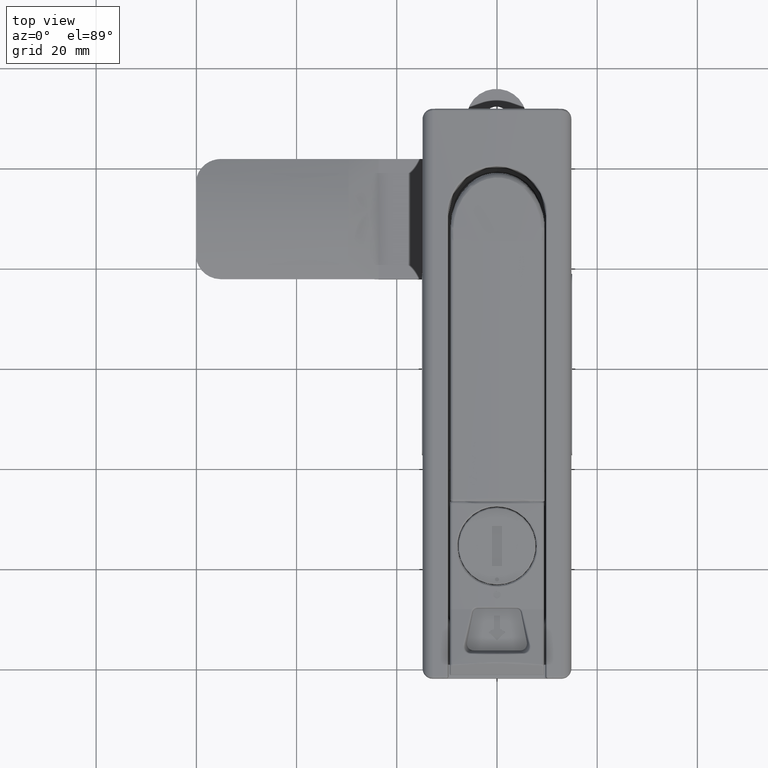
[diagram: clean part render]
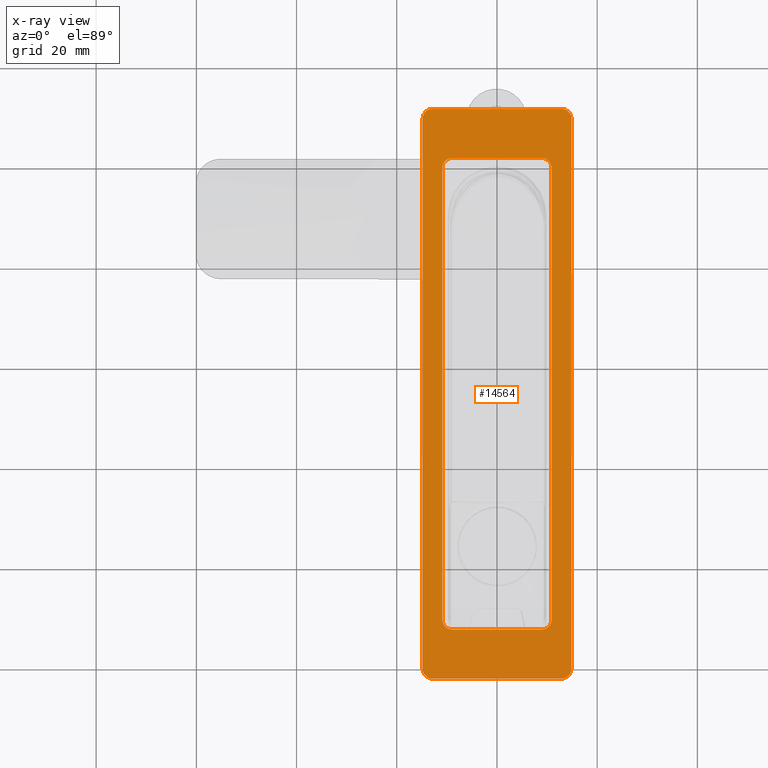
[diagram: x-ray — body ghosted, one internal face saturated and labeled with its STEP entity id]
A machine part, top view, then the same camera in x-ray: the body is ghosted and one INTERNAL B-rep face — a face not visible from any outside direction — is saturated and labeled: STEP entity #14564.
In plain terms, the highlighted planar face has unit normal (-0, 0, 1).
Its self-contained STEP definition (entity closure, byte-faithful):
#467=FACE_BOUND('',#4172,.T.);
#1093=LINE('',#43708,#2013);
#1097=LINE('',#43720,#2017);
#1101=LINE('',#43732,#2021);
#1105=LINE('',#43744,#2025);
#1109=LINE('',#43756,#2029);
#1113=LINE('',#43768,#2033);
#1117=LINE('',#43780,#2037);
#1121=LINE('',#43792,#2041);
#2013=VECTOR('',#18578,17.7999999999999);
#2017=VECTOR('',#18590,90.1000000000001);
#2021=VECTOR('',#18602,17.7999999999999);
#2025=VECTOR('',#18614,90.1000000000001);
#2029=VECTOR('',#18626,109.7);
#2033=VECTOR('',#18638,25.6999999999998);
#2037=VECTOR('',#18650,109.7);
#2041=VECTOR('',#18662,25.6999999999998);
#2650=PLANE('',#15839);
#3252=FACE_OUTER_BOUND('',#4171,.T.);
#4171=EDGE_LOOP('',(#11685,#11686,#11687,#11688,#11689,#11690,#11691,#11692));
#4172=EDGE_LOOP('',(#11693,#11694,#11695,#11696,#11697,#11698,#11699,#11700));
#5441=CIRCLE('',#15810,2.);
#5443=CIRCLE('',#15814,1.99999999999999);
#5445=CIRCLE('',#15818,1.99999999999999);
#5447=CIRCLE('',#15822,1.99999999999999);
#5449=CIRCLE('',#15826,1.99999999999999);
#5451=CIRCLE('',#15830,1.99999999999999);
#5453=CIRCLE('',#15834,2.);
#5455=CIRCLE('',#15838,2.00000000000001);
#6496=VERTEX_POINT('',#43705);
#6497=VERTEX_POINT('',#43707);
#6499=VERTEX_POINT('',#43713);
#6501=VERTEX_POINT('',#43719);
#6503=VERTEX_POINT('',#43725);
#6505=VERTEX_POINT('',#43731);
#6507=VERTEX_POINT('',#43737);
#6509=VERTEX_POINT('',#43743);
#6512=VERTEX_POINT('',#43753);
#6513=VERTEX_POINT('',#43755);
#6515=VERTEX_POINT('',#43761);
#6517=VERTEX_POINT('',#43767);
#6519=VERTEX_POINT('',#43773);
#6521=VERTEX_POINT('',#43779);
#6523=VERTEX_POINT('',#43785);
#6525=VERTEX_POINT('',#43791);
#8296=EDGE_CURVE('',#6497,#6496,#1093,.T.);
#8299=EDGE_CURVE('',#6499,#6497,#5441,.T.);
#8302=EDGE_CURVE('',#6501,#6499,#1097,.T.);
#8305=EDGE_CURVE('',#6503,#6501,#5443,.T.);
#8308=EDGE_CURVE('',#6505,#6503,#1101,.T.);
#8311=EDGE_CURVE('',#6507,#6505,#5445,.T.);
#8314=EDGE_CURVE('',#6509,#6507,#1105,.T.);
#8317=EDGE_CURVE('',#6496,#6509,#5447,.T.);
#8320=EDGE_CURVE('',#6513,#6512,#1109,.T.);
#8323=EDGE_CURVE('',#6515,#6513,#5449,.T.);
#8326=EDGE_CURVE('',#6517,#6515,#1113,.T.);
#8329=EDGE_CURVE('',#6519,#6517,#5451,.T.);
#8332=EDGE_CURVE('',#6521,#6519,#1117,.T.);
#8335=EDGE_CURVE('',#6523,#6521,#5453,.T.);
#8338=EDGE_CURVE('',#6525,#6523,#1121,.T.);
#8341=EDGE_CURVE('',#6512,#6525,#5455,.T.);
#11685=ORIENTED_EDGE('',*,*,#8341,.T.);
#11686=ORIENTED_EDGE('',*,*,#8338,.T.);
#11687=ORIENTED_EDGE('',*,*,#8335,.T.);
#11688=ORIENTED_EDGE('',*,*,#8332,.T.);
#11689=ORIENTED_EDGE('',*,*,#8329,.T.);
#11690=ORIENTED_EDGE('',*,*,#8326,.T.);
#11691=ORIENTED_EDGE('',*,*,#8323,.T.);
#11692=ORIENTED_EDGE('',*,*,#8320,.T.);
#11693=ORIENTED_EDGE('',*,*,#8317,.T.);
#11694=ORIENTED_EDGE('',*,*,#8314,.T.);
#11695=ORIENTED_EDGE('',*,*,#8311,.T.);
#11696=ORIENTED_EDGE('',*,*,#8308,.T.);
#11697=ORIENTED_EDGE('',*,*,#8305,.T.);
#11698=ORIENTED_EDGE('',*,*,#8302,.T.);
#11699=ORIENTED_EDGE('',*,*,#8299,.T.);
#11700=ORIENTED_EDGE('',*,*,#8296,.T.);
#14564=ADVANCED_FACE('',(#3252,#467),#2650,.T.);
#15810=AXIS2_PLACEMENT_3D('',#43714,#18584,#18585);
#15814=AXIS2_PLACEMENT_3D('',#43726,#18596,#18597);
#15818=AXIS2_PLACEMENT_3D('',#43738,#18608,#18609);
#15822=AXIS2_PLACEMENT_3D('',#43748,#18620,#18621);
#15826=AXIS2_PLACEMENT_3D('',#43762,#18632,#18633);
#15830=AXIS2_PLACEMENT_3D('',#43774,#18644,#18645);
#15834=AXIS2_PLACEMENT_3D('',#43786,#18656,#18657);
#15838=AXIS2_PLACEMENT_3D('',#43796,#18668,#18669);
#15839=AXIS2_PLACEMENT_3D('',#43797,#18670,#18671);
#18578=DIRECTION('',(0.,1.,0.));
#18584=DIRECTION('center_axis',(0.,0.,-1.));
#18585=DIRECTION('ref_axis',(-1.,0.,0.));
#18590=DIRECTION('',(-1.,0.,0.));
#18596=DIRECTION('center_axis',(0.,0.,-1.));
#18597=DIRECTION('ref_axis',(0.,-1.,0.));
#18602=DIRECTION('',(0.,-1.,0.));
#18608=DIRECTION('center_axis',(0.,0.,-1.));
#18609=DIRECTION('ref_axis',(1.,0.,0.));
#18614=DIRECTION('',(1.,0.,0.));
#18620=DIRECTION('center_axis',(0.,0.,-1.));
#18621=DIRECTION('ref_axis',(0.,1.,0.));
#18626=DIRECTION('',(-1.,1.61928608878783E-16,9.97962101416374E-50));
#18632=DIRECTION('center_axis',(0.,5.47382212626882E-48,1.));
#18633=DIRECTION('ref_axis',(1.,0.,0.));
#18638=DIRECTION('',(0.,1.,0.));
#18644=DIRECTION('center_axis',(-1.67587468650927E-64,-2.73691106313442E-48,
1.));
#18645=DIRECTION('ref_axis',(0.,-1.,-2.73691106313442E-48));
#18650=DIRECTION('',(1.,0.,-4.98981050708187E-50));
#18656=DIRECTION('center_axis',(0.,0.,1.));
#18657=DIRECTION('ref_axis',(-1.,0.,0.));
#18662=DIRECTION('',(-3.45594715836627E-16,-1.,0.));
#18668=DIRECTION('center_axis',(-1.67587468650927E-64,0.,1.));
#18669=DIRECTION('ref_axis',(0.,1.,0.));
#18670=DIRECTION('center_axis',(-1.67587468650927E-64,0.,1.));
#18671=DIRECTION('ref_axis',(-1.,0.,0.));
#43705=CARTESIAN_POINT('',(67.3999999999999,-91.1000000000001,-2.34999999999999));
#43707=CARTESIAN_POINT('',(67.3999999999999,-108.9,-2.34999999999999));
#43708=CARTESIAN_POINT('',(67.3999999999999,-91.1000000000001,-2.34999999999999));
#43713=CARTESIAN_POINT('',(69.3999999999999,-110.9,-2.34999999999999));
#43714=CARTESIAN_POINT('Origin',(69.3999999999999,-108.9,-2.34999999999999));
#43719=CARTESIAN_POINT('',(159.5,-110.9,-2.34999999999999));
#43720=CARTESIAN_POINT('',(69.3999999999999,-110.9,-2.34999999999999));
#43725=CARTESIAN_POINT('',(161.5,-108.9,-2.34999999999999));
#43726=CARTESIAN_POINT('Origin',(159.5,-108.9,-2.34999999999999));
#43731=CARTESIAN_POINT('',(161.5,-91.1000000000001,-2.34999999999999));
#43732=CARTESIAN_POINT('',(161.5,-108.9,-2.34999999999999));
#43737=CARTESIAN_POINT('',(159.5,-89.1000000000001,-2.34999999999999));
#43738=CARTESIAN_POINT('Origin',(159.5,-91.1000000000001,-2.34999999999999));
#43743=CARTESIAN_POINT('',(69.3999999999999,-89.1000000000001,-2.34999999999999));
#43744=CARTESIAN_POINT('',(159.5,-89.1000000000001,-2.34999999999999));
#43748=CARTESIAN_POINT('Origin',(69.3999999999999,-91.1000000000001,-2.34999999999999));
#43753=CARTESIAN_POINT('',(59.5999999999999,-85.1500000000002,-2.34999999999999));
#43755=CARTESIAN_POINT('',(169.3,-85.1500000000002,-2.34999999999999));
#43756=CARTESIAN_POINT('',(169.3,-85.1500000000002,-2.34999999999999));
#43761=CARTESIAN_POINT('',(171.3,-87.1500000000002,-2.34999999999999));
#43762=CARTESIAN_POINT('Origin',(169.3,-87.1500000000002,-2.34999999999999));
#43767=CARTESIAN_POINT('',(171.3,-112.85,-2.34999999999999));
#43768=CARTESIAN_POINT('',(171.3,-112.85,-2.34999999999999));
#43773=CARTESIAN_POINT('',(169.3,-114.85,-2.34999999999999));
#43774=CARTESIAN_POINT('Origin',(169.3,-112.85,-2.34999999999999));
#43779=CARTESIAN_POINT('',(59.5999999999999,-114.85,-2.34999999999999));
#43780=CARTESIAN_POINT('',(59.5999999999999,-114.85,-2.34999999999999));
#43785=CARTESIAN_POINT('',(57.5999999999999,-112.85,-2.34999999999999));
#43786=CARTESIAN_POINT('Origin',(59.5999999999999,-112.85,-2.34999999999999));
#43791=CARTESIAN_POINT('',(57.5999999999999,-87.1500000000002,-2.34999999999999));
#43792=CARTESIAN_POINT('',(57.5999999999999,-87.1500000000002,-2.34999999999999));
#43796=CARTESIAN_POINT('Origin',(59.5999999999999,-87.1500000000002,-2.34999999999999));
#43797=CARTESIAN_POINT('Origin',(114.45,-100.,-2.34999999999999));